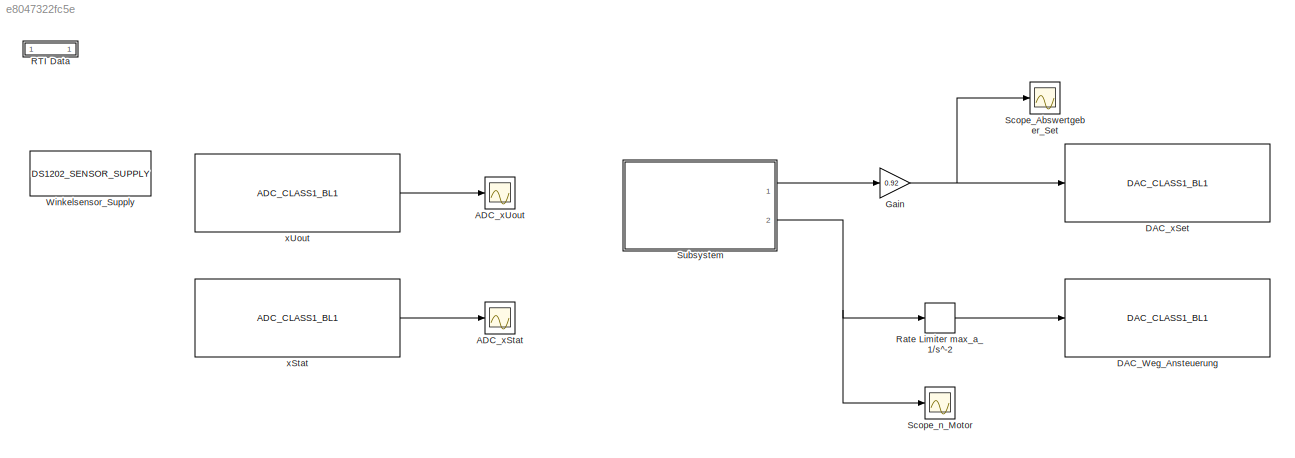
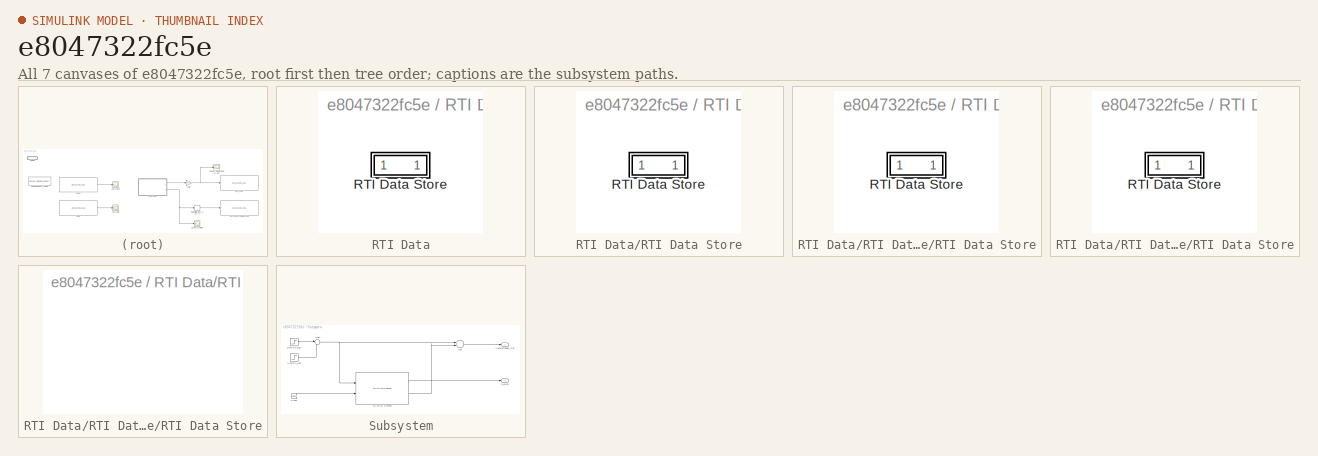
[diagram: thumbnail index - all 7 canvases of the model, root first then tree order]
MODEL slx_e8047322fc5e
KIND model
CONFIG AbsTol = auto
CONFIG EnableMultiTasking = off
CONFIG FixedStep = 0.001
CONFIG MaxStep = auto
CONFIG MinStep = auto
CONFIG PostLoadFcn = , if any(exist('dsrtsu_mdlpostloadfcn', 'file') == [2, 3, 6]), try dsrtsu_mdlpostloadfcn('Execute', bdroot); catch fprintf('Error in PostLoadFcn (dsrtsu_mdlpostloadfcn) for model "%s":\n %s\n', bdroot, lasterr); end, end, \n
CONFIG RelTol = 1e-3
CONFIG SampleTimeConstraint = Unconstrained
CONFIG Solver = ode1
CONFIG SolverName = ode1
CONFIG StartTime = 0.0
CONFIG StopTime = Inf
BLOCK [Scope] ADC_xStat
  NumInputPorts = 1
  Ports = [1]
  ScopeSpecificationString = C++SS(StrPVP('SaveName','ScopeData5'),StrPVP('LimitDataPoints','on'),StrPVP('DataFormat','Array'),StrPVP('Decimation','1'),StrPVP('BlockParamSampleInput','off'))
BLOCK [Scope] ADC_xUout
  NumInputPorts = 1
  Ports = [1]
  ScopeSpecificationString = C++SS(StrPVP('SaveName','ScopeData4'),StrPVP('LimitDataPoints','on'),StrPVP('DataFormat','Array'),StrPVP('Decimation','1'),StrPVP('BlockParamSampleInput','off'))
BLOCK [Reference] DAC_Weg_Ansteuerung  REF=rti1202lib_dac_class1/DAC_CLASS1_BL1
  Ports = [1]
  SourceBlock = rti1202lib_dac_class1/DAC_CLASS1_BL1
  SourceType = RTI
BLOCK [Reference] DAC_xSet  REF=rti1202lib_dac_class1/DAC_CLASS1_BL1
  Ports = [1]
  SourceBlock = rti1202lib_dac_class1/DAC_CLASS1_BL1
  SourceType = RTI
BLOCK [Gain] Gain
  Gain = 0.92
  OutDataTypeStr = Inherit: Inherit via internal rule
  ParamDataTypeStr = Inherit: Inherit via internal rule
  SaturateOnIntegerOverflow = off
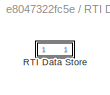
BLOCK [SubSystem] RTI Data
  CopyFcn = if exist('rtidc'), try,  rtidc('DataHostBlockClbCopy', gcbh); catch, disp(['Warning: ''CopyFcn'' for RTI Data block failed: ' lasterr]); end, end,
  DeleteFcn = if exist('rtidc'), try,  rtidc('DataHostBlockClbDelete', gcbh); catch, disp(['Warning: ''DeleteFcn'' for RTI Data block failed: ' lasterr]); end, end,
  LoadFcn = if exist('rtidc'), try,  rtidc('DataHostBlockClbLoad', gcbh); catch, disp(['Warning: ''LoadFcn'' for RTI Data block failed: ' lasterr]); end, end,
  ModelCloseFcn = if exist('rtidc'), try,  rtidc('DataHostBlockClbModelClose', gcbh); catch, disp(['Warning: ''ModelCloseFcn'' for RTI Data block failed: ' lasterr]); end, end,
  NameChangeFcn = if exist('rtidc'), try,  rtidc('DataHostBlockClbNameChange', gcbh); catch, disp(['Warning: ''NameChangeFcn'' for RTI Data block failed: ' lasterr]); end, end,
  Ports = []
  PostSaveFcn = if exist('rtidc'), try,  rtidc('DataHostBlockClbPostSave', gcbh); catch, disp(['Warning: ''PostSaveFcn'' for RTI Data block failed: ' lasterr]); end, end,
  PreSaveFcn = if exist('rtidc'), try,  rtidc('DataHostBlockClbPreSave', gcbh); catch, disp(['Warning: ''PreSaveFcn'' for RTI Data block failed: ' lasterr]); end, end,
  RequestExecContextInheritance = off
  Tag = struct('RTIDataServer',struct('RTIDataServerVs','2','RTIModelDescription','struct(''main'',''aktoren_sensoren_ansprechen'',''sub'','''',''isMp'',0)'))
  Variant = off
BLOCK [SubSystem] RTI Data/RTI Data Store
  Ports = []
  RequestExecContextInheritance = off
  Tag = struct('private',struct('version',struct('dsVer',uint32(2),'dsVerCreation',uint32(2),'RTI',struct('ver','7.7','type','RTI1202')),'access',struct('type','Model','isPerm',1,'created',['24-Nov-2020 10:16:32'],'modified',['02-Dec-2020 14:36:23'],'location','')),'public',struct('main',struct('data',[]),'sub',struct('name',{{'aktoren_sensoren_ansprechen'}},'data',{{struct('TH',struct('thTaskInfo',struct...<+904ch>
  Variant = off
BLOCK [SubSystem] RTI Data/RTI Data Store/RTI Data Store
  Ports = []
  RequestExecContextInheritance = off
  Variant = off
BLOCK [SubSystem] RTI Data/RTI Data Store/RTI Data Store/RTI Data Store
  Ports = []
  RequestExecContextInheritance = off
  Variant = off
BLOCK [SubSystem] RTI Data/RTI Data Store/RTI Data Store/RTI Data Store/RTI Data Store
  Ports = []
  RequestExecContextInheritance = off
  Variant = off
BLOCK [RateLimiter] Rate Limiter max_a_1//s^-2
  FallingSlewLimit = -0.013333
  RisingSlewLimit = 0.013333
  SampleTimeMode = inherited
BLOCK [Scope] Scope_Abswertgeber_Set
  NumInputPorts = 1
  Ports = [1]
  ScopeSpecificationString = C++SS(StrPVP('SaveName','ScopeData2'),StrPVP('LimitDataPoints','on'),StrPVP('DataFormat','Array'),StrPVP('Decimation','1'),StrPVP('BlockParamSampleInput','off'))
BLOCK [Scope] Scope_n_Motor
  NumInputPorts = 1
  Ports = [1]
  ScopeSpecificationString = C++SS(StrPVP('SaveName','ScopeData3'),StrPVP('LimitDataPoints','on'),StrPVP('DataFormat','Array'),StrPVP('Decimation','1'),StrPVP('BlockParamSampleInput','off'))
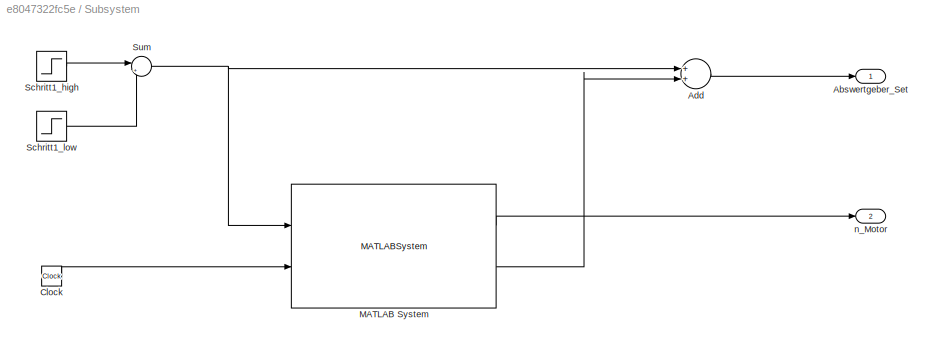
BLOCK [SubSystem] Subsystem
  Ports = [0, 2]
  RequestExecContextInheritance = off
  Variant = off
BLOCK [Outport] Subsystem/Abswertgeber_Set
  IconDisplay = Port number
BLOCK [Sum] Subsystem/Add
  InputSameDT = off
  OutDataTypeStr = Inherit: Inherit via internal rule
  Ports = [2, 1]
  SaturateOnIntegerOverflow = off
BLOCK [Clock] Subsystem/Clock
BLOCK [MATLABSystem] Subsystem/MATLAB System
  MaskDisplay = disp('laufkatze_teach_weg_classdef');\nport_label('input',1,'Schritt1');\nport_label('input',2,'Clock');\nport_label('output',1,'n_Motor');\nport_label('output',2,'Abswertgeber_Set');
  MaskType = laufkatze_teach_weg_classdef
  Ports = [2, 2]
  SimulateUsing = Code generation
  System = laufkatze_teach_weg_classdef
BLOCK [Step] Subsystem/Schritt1_high
  SampleTime = 0
  Time = 30
BLOCK [Step] Subsystem/Schritt1_low
  After = -1
  SampleTime = 0
  Time = 36.5
BLOCK [Sum] Subsystem/Sum
  IconShape = round
  InputSameDT = off
  Inputs = |++
  OutDataTypeStr = Inherit: Inherit via internal rule
  Ports = [2, 1]
  SaturateOnIntegerOverflow = off
BLOCK [Outport] Subsystem/n_Motor
  IconDisplay = Port number
  Port = 2
BLOCK [Reference] Winkelsensor_Supply  REF=rti1202lib_base/DS1202_SENSOR_SUPPLY
  Ports = []
  SourceBlock = rti1202lib_base/DS1202_SENSOR_SUPPLY
  SourceType = RTI
BLOCK [Reference] xStat  REF=rti1202lib_adc_class1/ADC_CLASS1_BL1
  Ports = [0, 1]
  SourceBlock = rti1202lib_adc_class1/ADC_CLASS1_BL1
  SourceType = RTI
BLOCK [Reference] xUout  REF=rti1202lib_adc_class1/ADC_CLASS1_BL1
  Ports = [0, 1]
  SourceBlock = rti1202lib_adc_class1/ADC_CLASS1_BL1
  SourceType = RTI
NET Gain:1 -> DAC_xSet:1, Scope_Abswertgeber_Set:1
LINE Rate Limiter max_a_1//s^-2:1 -> DAC_Weg_Ansteuerung:1
LINE Subsystem/Add:1 -> Subsystem/Abswertgeber_Set:1
LINE Subsystem/Clock:1 -> Subsystem/MATLAB System:2
LINE Subsystem/MATLAB System:1 -> Subsystem/n_Motor:1
LINE Subsystem/MATLAB System:2 -> Subsystem/Add:2
LINE Subsystem/Schritt1_high:1 -> Subsystem/Sum:1
LINE Subsystem/Schritt1_low:1 -> Subsystem/Sum:2
NET Subsystem/Sum:1 -> Subsystem/Add:1, Subsystem/MATLAB System:1
LINE Subsystem:1 -> Gain:1
NET Subsystem:2 -> Rate Limiter max_a_1//s^-2:1, Scope_n_Motor:1
LINE xStat:1 -> ADC_xStat:1
LINE xUout:1 -> ADC_xUout:1
note: NET lines group one-source signal fan-out (src -> all destinations, sorted); 1:1 wires keep LINE
